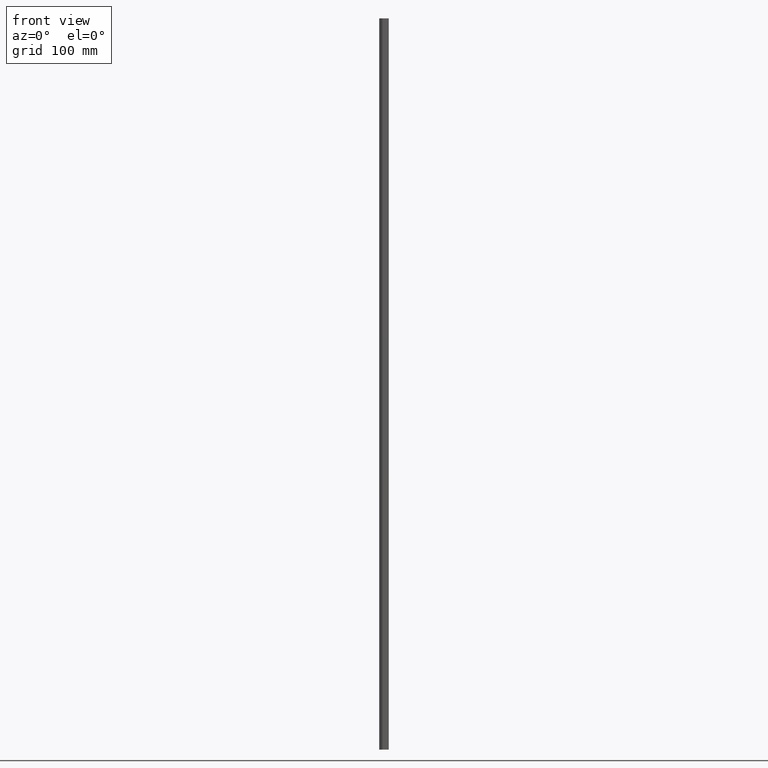
[diagram: clean part render]
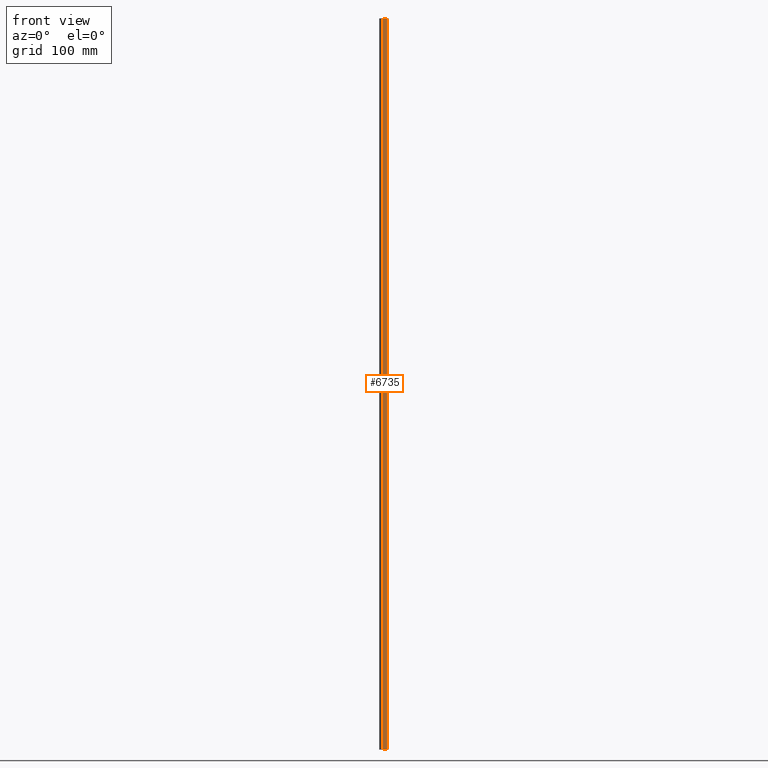
[diagram: same view with one face highlighted and labeled with its STEP entity id]
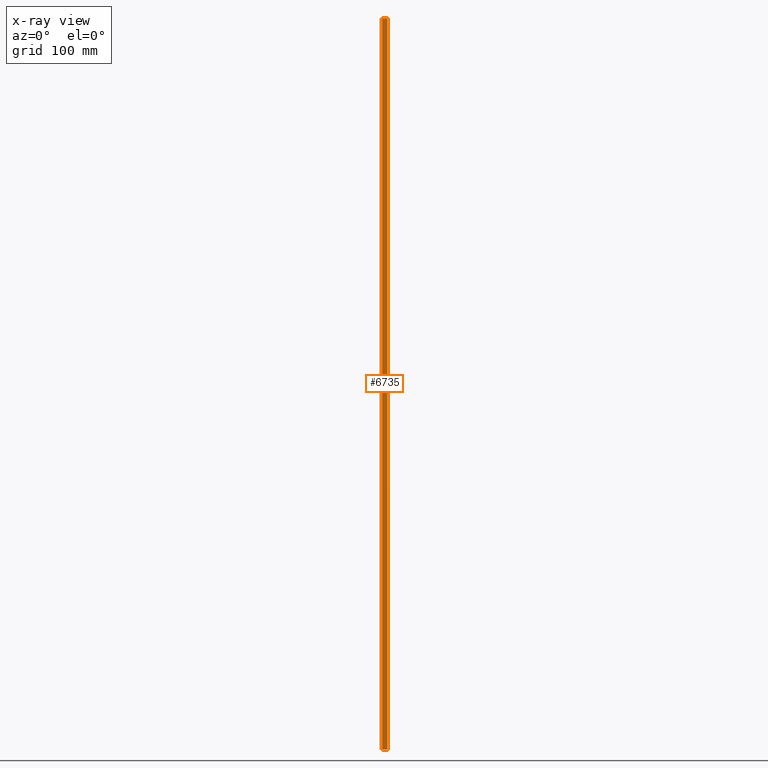
[diagram: x-ray of the same camera — body ghosted, the highlighted face saturated]
A machine part, front view. The second image highlights one B-rep face of the part: STEP entity #6735.
The next image is the same camera in x-ray: the body ghosted, the highlighted face saturated — about 0% of this face is hidden behind the body in this view.
In plain terms, the highlighted planar face has unit normal (0, 1, 0).
Its self-contained STEP definition (entity closure, byte-faithful):
#156 = ORIENTED_EDGE ( 'NONE', *, *, #14138, .F. ) ;
#746 = CARTESIAN_POINT ( 'NONE',  ( -3.349577511172464828, 0.000000000000000000, 500.0000000000000000 ) ) ;
#1246 = FACE_OUTER_BOUND ( 'NONE', #17535, .T. ) ;
#1377 = CARTESIAN_POINT ( 'NONE',  ( 3.349577511172458166, 6.938893903907228378E-15, -500.0000000000000000 ) ) ;
#2702 = CARTESIAN_POINT ( 'NONE',  ( 3.349577511172458166, 6.938893903907228378E-15, 500.0000000000000000 ) ) ;
#2744 = VERTEX_POINT ( 'NONE', #2702 ) ;
#3111 = LINE ( 'NONE', #3978, #16972 ) ;
#3282 = EDGE_CURVE ( 'NONE', #10528, #4392, #3111, .T. ) ;
#3804 = ORIENTED_EDGE ( 'NONE', *, *, #3282, .T. ) ;
#3978 = CARTESIAN_POINT ( 'NONE',  ( -3.349577511172464828, 0.000000000000000000, 500.0000000000000000 ) ) ;
#4119 = LINE ( 'NONE', #18809, #15684 ) ;
#4392 = VERTEX_POINT ( 'NONE', #13154 ) ;
#6647 = PLANE ( 'NONE',  #15339 ) ;
#6735 = ADVANCED_FACE ( 'NONE', ( #1246 ), #6647, .F. ) ;
#8468 = LINE ( 'NONE', #9809, #15395 ) ;
#9457 = VERTEX_POINT ( 'NONE', #1377 ) ;
#9809 = CARTESIAN_POINT ( 'NONE',  ( -3.349577511172464828, 0.000000000000000000, 500.0000000000000000 ) ) ;
#10065 = DIRECTION ( 'NONE',  ( 1.000000000000000000, 0.000000000000000000, 0.000000000000000000 ) ) ;
#10189 = DIRECTION ( 'NONE',  ( 1.000000000000000000, 0.000000000000000000, 0.000000000000000000 ) ) ;
#10325 = LINE ( 'NONE', #11284, #13780 ) ;
#10528 = VERTEX_POINT ( 'NONE', #746 ) ;
#11044 = CARTESIAN_POINT ( 'NONE',  ( -3.349577511172464828, 0.000000000000000000, 500.0000000000000000 ) ) ;
#11096 = EDGE_CURVE ( 'NONE', #4392, #9457, #4119, .T. ) ;
#11284 = CARTESIAN_POINT ( 'NONE',  ( 3.349577511172458166, 6.938893903907228378E-15, 500.0000000000000000 ) ) ;
#13154 = CARTESIAN_POINT ( 'NONE',  ( -3.349577511172464828, 0.000000000000000000, -500.0000000000000000 ) ) ;
#13780 = VECTOR ( 'NONE', #17277, 1000.000000000000000 ) ;
#13902 = EDGE_CURVE ( 'NONE', #10528, #2744, #8468, .T. ) ;
#14013 = DIRECTION ( 'NONE',  ( 0.000000000000000000, -0.000000000000000000, 1.000000000000000000 ) ) ;
#14138 = EDGE_CURVE ( 'NONE', #2744, #9457, #10325, .T. ) ;
#15339 = AXIS2_PLACEMENT_3D ( 'NONE', #11044, #18436, #14013 ) ;
#15395 = VECTOR ( 'NONE', #10065, 1000.000000000000000 ) ;
#15684 = VECTOR ( 'NONE', #10189, 1000.000000000000000 ) ;
#15938 = DIRECTION ( 'NONE',  ( -0.000000000000000000, -0.000000000000000000, -1.000000000000000000 ) ) ;
#16972 = VECTOR ( 'NONE', #15938, 1000.000000000000000 ) ;
#17229 = ORIENTED_EDGE ( 'NONE', *, *, #11096, .T. ) ;
#17277 = DIRECTION ( 'NONE',  ( -0.000000000000000000, -0.000000000000000000, -1.000000000000000000 ) ) ;
#17320 = ORIENTED_EDGE ( 'NONE', *, *, #13902, .F. ) ;
#17535 = EDGE_LOOP ( 'NONE', ( #17229, #156, #17320, #3804 ) ) ;
#18436 = DIRECTION ( 'NONE',  ( 0.000000000000000000, 1.000000000000000000, 0.000000000000000000 ) ) ;
#18809 = CARTESIAN_POINT ( 'NONE',  ( -3.349577511172464828, 0.000000000000000000, -500.0000000000000000 ) ) ;